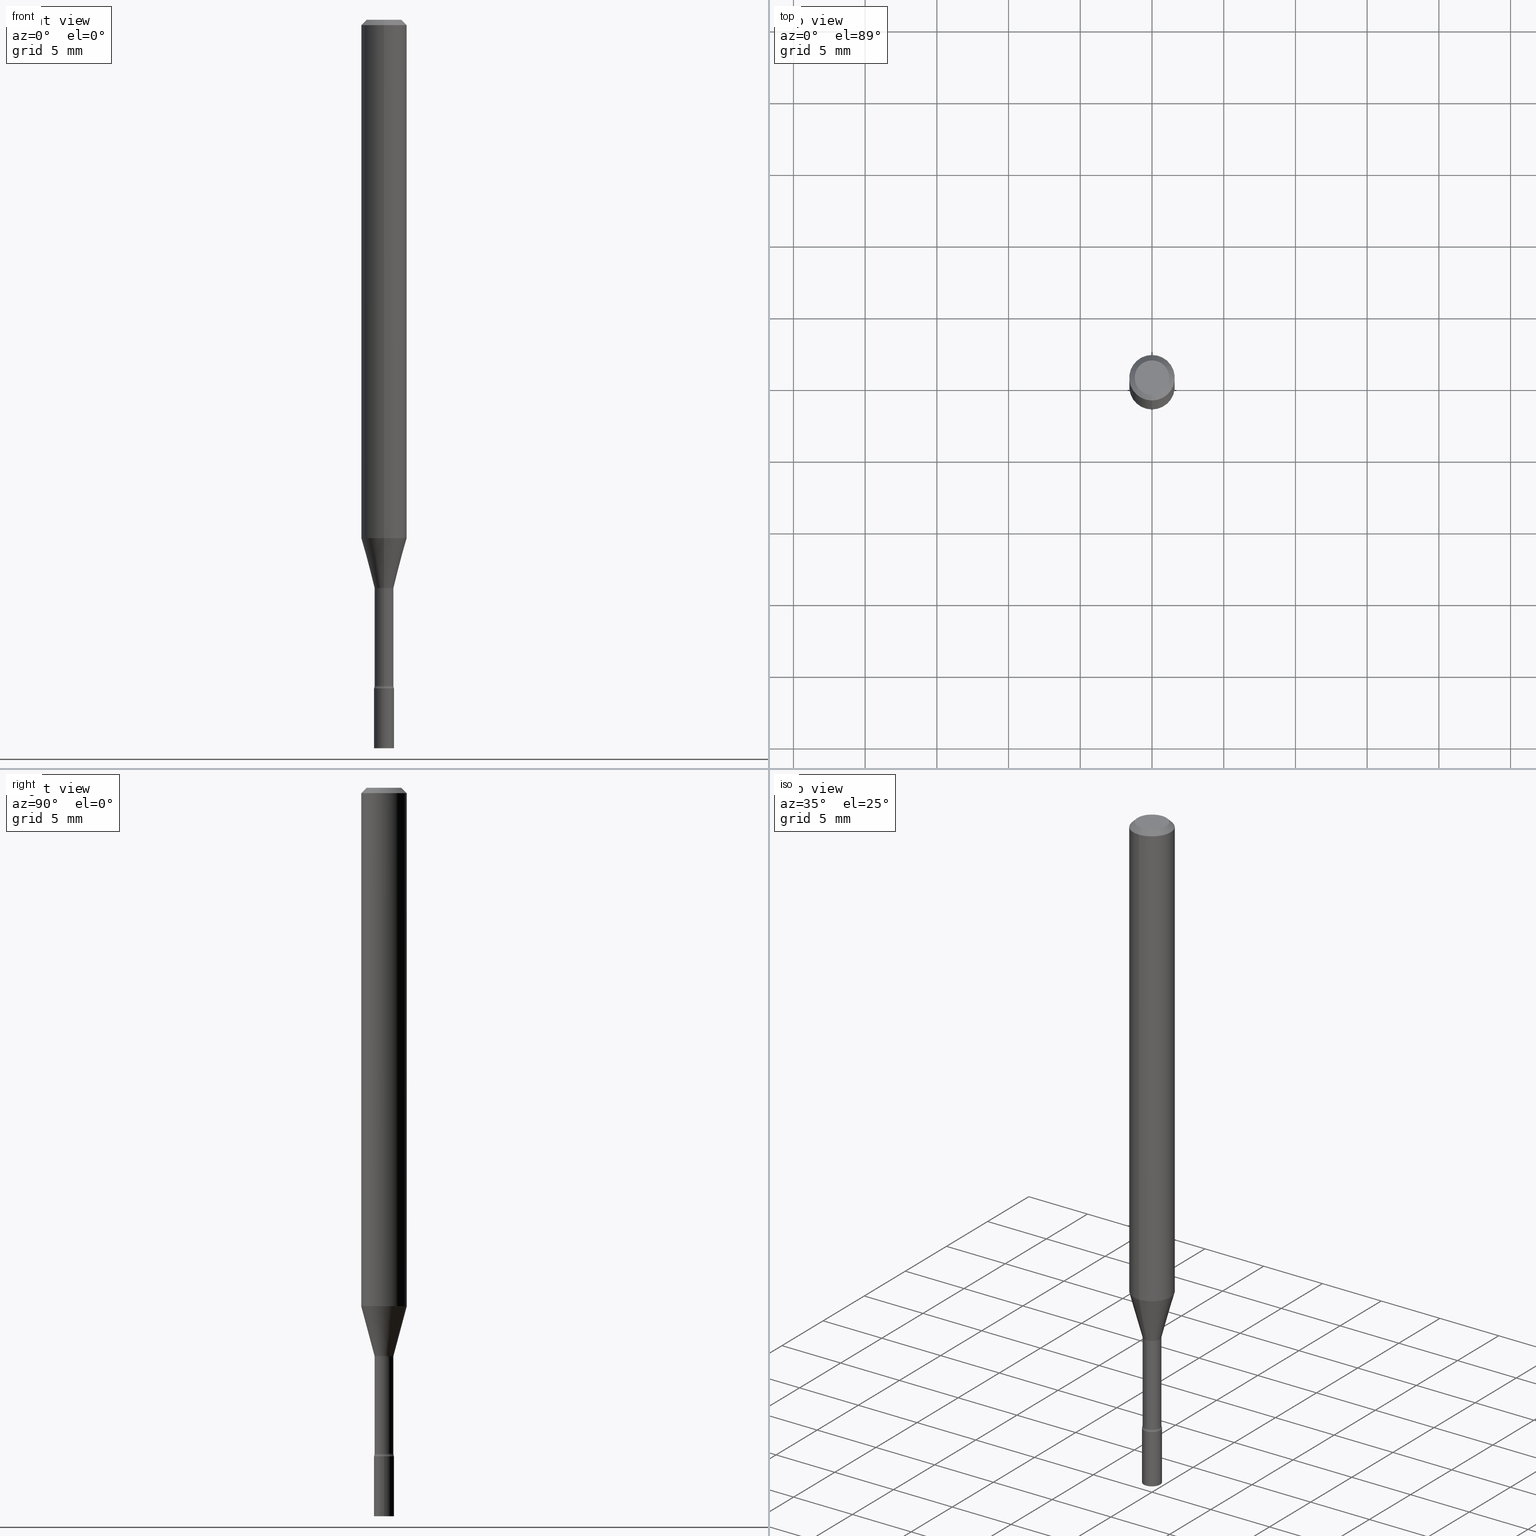
[diagram: canonical four-view strip — front | top / right | iso, engineering-drawing reading convention]
A machine part, canonical four-view strip (front | top / right | iso — engineering-drawing reading convention). The complete STEP part file that produces these views, byte-faithful:
ISO-10303-21;
HEADER;
FILE_DESCRIPTION (( 'STEP AP203' ),
    '1' );
FILE_NAME ('09861.STEP',
    '2024-03-09T02:26:53',
    ( '' ),
    ( '' ),
    'SwSTEP 2.0',
    'SolidWorks 2023',
    '' );
FILE_SCHEMA (( 'CONFIG_CONTROL_DESIGN' ));
ENDSEC;

DATA;
#1 = VERTEX_POINT ( 'NONE', #249 ) ;
#2 = ADVANCED_FACE ( 'NONE', ( #43 ), #41, .T. ) ;
#3 = ORIENTED_EDGE ( 'NONE', *, *, #342, .F. ) ;
#4 = AXIS2_PLACEMENT_3D ( 'NONE', #186, #29, #275 ) ;
#5 = AXIS2_PLACEMENT_3D ( 'NONE', #472, #191, #270 ) ;
#6 = ADVANCED_FACE ( 'NONE', ( #457 ), #416, .T. ) ;
#7 = CARTESIAN_POINT ( 'NONE',  ( 4.487377825415129474E-29, -6.406950505440450642E-15, -1.834999999999999964 ) ) ;
#8 = ORIENTED_EDGE ( 'NONE', *, *, #456, .F. ) ;
#9 = APPROVAL_DATE_TIME ( #372, #450 ) ;
#10 = DIRECTION ( 'NONE',  ( -6.982962677686263555E-15, -1.000000000000000000, 0.000000000000000000 ) ) ;
#11 = PERSON_AND_ORGANIZATION_ROLE ( 'design_supplier' ) ;
#12 = CARTESIAN_POINT ( 'NONE',  ( -1.840786654675984298E-16, -0.02636111260566941991, -1.558092501787273099 ) ) ;
#13 = APPROVAL_DATE_TIME ( #404, #459 ) ;
#14 = DIRECTION ( 'NONE',  ( -2.445437507038217742E-29, 3.491526161002970435E-15, 1.000000000000000000 ) ) ;
#15 = LOCAL_TIME ( 21, 26, 53.00000000000000000, #506 ) ;
#16 = CARTESIAN_POINT ( 'NONE',  ( 0.02750000000000000014, -6.598899730413544603E-15, -1.834999999999999964 ) ) ;
#17 = LINE ( 'NONE', #271, #463 ) ;
#18 = DIRECTION ( 'NONE',  ( 2.438088387897960049E-29, -3.491481338843145188E-15, -1.000000000000000000 ) ) ;
#19 = APPROVAL_STATUS ( 'not_yet_approved' ) ;
#20 = EDGE_CURVE ( 'NONE', #48, #360, #493, .T. ) ;
#21 = LINE ( 'NONE', #266, #215 ) ;
#22 = ORIENTED_EDGE ( 'NONE', *, *, #350, .T. ) ;
#23 = CARTESIAN_POINT ( 'NONE',  ( 2.902567075580390688E-16, 0.04084999999999454345, -1.561974787463811243 ) ) ;
#24 = CARTESIAN_POINT ( 'NONE',  ( -1.805095852181458995E-16, -0.02585000000000647197, -1.828160592130893436 ) ) ;
#25 = AXIS2_PLACEMENT_3D ( 'NONE', #147, #353, #69 ) ;
#26 = CARTESIAN_POINT ( 'NONE',  ( 3.480396395086626474E-29, -4.969211042658417815E-15, -1.423220337902600718 ) ) ;
#27 = CARTESIAN_POINT ( 'NONE',  ( 0.000000000000000000, 0.000000000000000000, 0.000000000000000000 ) ) ;
#28 = DIRECTION ( 'NONE',  ( -6.982962677686265922E-15, -1.000000000000000000, 4.370956789862821150E-15 ) ) ;
#29 = DIRECTION ( 'NONE',  ( 2.445437507038217182E-29, -3.491526161002970435E-15, -1.000000000000000000 ) ) ;
#30 = CARTESIAN_POINT ( 'NONE',  ( 4.440892098500625669E-16, 0.06250000000000000000, -2.182203850626856522E-16 ) ) ;
#31 = VERTEX_POINT ( 'NONE', #24 ) ;
#32 = DIRECTION ( 'NONE',  ( -6.982962677686265922E-15, -1.000000000000000000, 0.000000000000000000 ) ) ;
#33 = CARTESIAN_POINT ( 'NONE',  ( 4.487435259349726059E-29, -6.406868256777172111E-15, -1.834999999999999964 ) ) ;
#34 = CIRCLE ( 'NONE', #481, 0.01500000000000002720 ) ;
#35 = DIRECTION ( 'NONE',  ( -2.445468806185136597E-29, 3.491481338843145583E-15, 1.000000000000000000 ) ) ;
#36 = ADVANCED_FACE ( 'NONE', ( #499 ), #422, .T. ) ;
#37 = ORIENTED_EDGE ( 'NONE', *, *, #503, .F. ) ;
#38 = CIRCLE ( 'NONE', #200, 0.02584999999999999798 ) ;
#39 = ORIENTED_EDGE ( 'NONE', *, *, #433, .F. ) ;
#40 = ORIENTED_EDGE ( 'NONE', *, *, #370, .T. ) ;
#41 = CYLINDRICAL_SURFACE ( 'NONE', #263, 0.02585000000000004655 ) ;
#42 = PERSON_AND_ORGANIZATION_ROLE ( 'design_owner' ) ;
#43 = FACE_OUTER_BOUND ( 'NONE', #411, .T. ) ;
#44 = COORDINATED_UNIVERSAL_TIME_OFFSET ( 5, 0, .BEHIND. ) ;
#45 = LINE ( 'NONE', #445, #441 ) ;
#46 = CIRCLE ( 'NONE', #421, 0.06250000000000000000 ) ;
#47 = ORGANIZATION ( 'UNSPECIFIED', 'UNSPECIFIED', '' ) ;
#48 = VERTEX_POINT ( 'NONE', #72 ) ;
#49 = PERSON_AND_ORGANIZATION_ROLE ( 'creator' ) ;
#50 = VERTEX_POINT ( 'NONE', #181 ) ;
#51 = DIRECTION ( 'NONE',  ( 1.000000000000000000, -6.982962677686279332E-15, 0.000000000000000000 ) ) ;
#52 = VECTOR ( 'NONE', #173, 39.37007874015748854 ) ;
#53 = DIRECTION ( 'NONE',  ( -2.445437507038217742E-29, 3.491526161002970435E-15, 1.000000000000000000 ) ) ;
#54 =( NAMED_UNIT ( * ) PLANE_ANGLE_UNIT ( ) SI_UNIT ( $, .RADIAN. ) );
#55 = PERSON_AND_ORGANIZATION ( #203, #47 ) ;
#56 = APPLICATION_CONTEXT ( 'configuration controlled 3d designs of mechanical parts and assemblies' ) ;
#57 = CARTESIAN_POINT ( 'NONE',  ( 3.668156260557333655E-31, -5.237289241504466426E-17, -0.01500000000000003067 ) ) ;
#58 = DATE_AND_TIME ( #454, #113 ) ;
#59 = DIRECTION ( 'NONE',  ( -6.982962677686265922E-15, -1.000000000000000000, 3.491526161002970435E-15 ) ) ;
#60 = CARTESIAN_POINT ( 'NONE',  ( 7.070195579311093589E-46, -1.009462427787423311E-31, -2.891178187527733767E-17 ) ) ;
#61 = APPROVAL ( #444, 'UNSPECIFIED' ) ;
#62 = CIRCLE ( 'NONE', #356, 0.04749999999999999362 ) ;
#63 = ORIENTED_EDGE ( 'NONE', *, *, #126, .F. ) ;
#64 = DIRECTION ( 'NONE',  ( 6.982962677686265922E-15, 1.000000000000000000, -3.483106191921935554E-15 ) ) ;
#65 = CARTESIAN_POINT ( 'NONE',  ( 0.000000000000000000, 0.000000000000000000, 0.000000000000000000 ) ) ;
#66 = FACE_OUTER_BOUND ( 'NONE', #262, .T. ) ;
#67 = ORIENTED_EDGE ( 'NONE', *, *, #114, .T. ) ;
#68 = DIRECTION ( 'NONE',  ( -2.445437507038217742E-29, 3.491526161002970435E-15, 1.000000000000000000 ) ) ;
#69 = DIRECTION ( 'NONE',  ( -6.982962677686265922E-15, -1.000000000000000000, 3.491526161002970435E-15 ) ) ;
#70 = FACE_OUTER_BOUND ( 'NONE', #247, .T. ) ;
#71 = VERTEX_POINT ( 'NONE', #179 ) ;
#72 = CARTESIAN_POINT ( 'NONE',  ( -0.02750000000000000014, -6.499516214897703913E-15, -1.834999999999999964 ) ) ;
#73 = LINE ( 'NONE', #30, #265 ) ;
#74 = AXIS2_PLACEMENT_3D ( 'NONE', #409, #449, #99 ) ;
#75 = APPROVAL_PERSON_ORGANIZATION ( #85, #450, #399 ) ;
#76 = EDGE_CURVE ( 'NONE', #1, #127, #62, .T. ) ;
#77 = ORIENTED_EDGE ( 'NONE', *, *, #373, .T. ) ;
#78 = ADVANCED_FACE ( 'NONE', ( #347 ), #228, .F. ) ;
#79 = ORIENTED_EDGE ( 'NONE', *, *, #342, .T. ) ;
#80 = AXIS2_PLACEMENT_3D ( 'NONE', #255, #90, #145 ) ;
#81 = ORIENTED_EDGE ( 'NONE', *, *, #241, .F. ) ;
#82 = APPROVAL_PERSON_ORGANIZATION ( #92, #459, #252 ) ;
#83 = EDGE_CURVE ( 'NONE', #392, #240, #226, .T. ) ;
#84 = EDGE_LOOP ( 'NONE', ( #87, #37, #516, #287 ) ) ;
#85 = PERSON_AND_ORGANIZATION ( #203, #47 ) ;
#86 = DIRECTION ( 'NONE',  ( -2.445437507038217742E-29, 3.491526161002970435E-15, 1.000000000000000000 ) ) ;
#87 = ORIENTED_EDGE ( 'NONE', *, *, #161, .F. ) ;
#88 = AXIS2_PLACEMENT_3D ( 'NONE', #130, #484, #290 ) ;
#89 = LOCAL_TIME ( 21, 26, 53.00000000000000000, #44 ) ;
#90 = DIRECTION ( 'NONE',  ( 1.000000000000000000, -7.105427357601001070E-15, 4.926316057455228102E-29 ) ) ;
#91 =( LENGTH_UNIT ( ) NAMED_UNIT ( * ) SI_UNIT ( $, .METRE. ) );
#92 = PERSON_AND_ORGANIZATION ( #203, #47 ) ;
#93 = ORIENTED_EDGE ( 'NONE', *, *, #20, .T. ) ;
#94 = CARTESIAN_POINT ( 'NONE',  ( 3.819711730312051793E-29, -5.453675833256950952E-15, -1.561974787463811021 ) ) ;
#95 = CARTESIAN_POINT ( 'NONE',  ( 3.819760618790408419E-29, -5.453605822173385006E-15, -1.561974787463811021 ) ) ;
#96 = ORIENTED_EDGE ( 'NONE', *, *, #483, .T. ) ;
#97 = COORDINATED_UNIVERSAL_TIME_OFFSET ( 5, 0, .BEHIND. ) ;
#98 = TOROIDAL_SURFACE ( 'NONE', #250, 0.04084999999999999742, 0.01500000000000002373 ) ;
#99 = DIRECTION ( 'NONE',  ( -6.982962677686265922E-15, -1.000000000000000000, 3.491526161002970435E-15 ) ) ;
#100 = CIRCLE ( 'NONE', #369, 0.06250000000000000000 ) ;
#101 = CARTESIAN_POINT ( 'NONE',  ( 4.470652480886083161E-29, -6.383070533939695711E-15, -1.828160592130893436 ) ) ;
#102 = CARTESIAN_POINT ( 'NONE',  ( 1.920314736364212538E-16, 0.02749999999999301961, -2.000000000000000000 ) ) ;
#103 = FACE_OUTER_BOUND ( 'NONE', #120, .T. ) ;
#104 = CARTESIAN_POINT ( 'NONE',  ( 3.156980902676104924E-16, 0.02636111260565854320, -1.558092501787273099 ) ) ;
#105 = CIRCLE ( 'NONE', #299, 0.01500000000000002720 ) ;
#106 = VECTOR ( 'NONE', #223, 39.37007874015748143 ) ;
#107 = DIRECTION ( 'NONE',  ( -2.445437507038217462E-29, 3.491526161002970435E-15, 1.000000000000000000 ) ) ;
#108 = DIRECTION ( 'NONE',  ( -2.445468806185136597E-29, 3.491481338843145583E-15, 1.000000000000000000 ) ) ;
#109 = DIRECTION ( 'NONE',  ( -1.000000000000000000, 6.982962677686265922E-15, -4.876176775795935793E-29 ) ) ;
#110 = ADVANCED_FACE ( 'NONE', ( #229 ), #384, .F. ) ;
#111 = ORIENTED_EDGE ( 'NONE', *, *, #114, .F. ) ;
#112 = AXIS2_PLACEMENT_3D ( 'NONE', #423, #385, #458 ) ;
#113 = LOCAL_TIME ( 21, 26, 53.00000000000000000, #182 ) ;
#114 = EDGE_CURVE ( 'NONE', #242, #374, #512, .T. ) ;
#115 = DESIGN_CONTEXT ( 'detailed design', #196, 'design' ) ;
#116 = ORIENTED_EDGE ( 'NONE', *, *, #254, .F. ) ;
#117 = CC_DESIGN_PERSON_AND_ORGANIZATION_ASSIGNMENT ( #55, #49, ( #511 ) ) ;
#118 = VERTEX_POINT ( 'NONE', #152 ) ;
#119 = CONICAL_SURFACE ( 'NONE', #157, 0.06250000000000000000, 0.7853981633974483900 ) ;
#120 = EDGE_LOOP ( 'NONE', ( #22, #93 ) ) ;
#121 = PERSON_AND_ORGANIZATION ( #203, #47 ) ;
#122 = DIRECTION ( 'NONE',  ( -6.982962677686265922E-15, -1.000000000000000000, 0.000000000000000000 ) ) ;
#123 = ORIENTED_EDGE ( 'NONE', *, *, #155, .T. ) ;
#124 = DIRECTION ( 'NONE',  ( 1.000000000000000000, 0.000000000000000000, 0.000000000000000000 ) ) ;
#125 = CARTESIAN_POINT ( 'NONE',  ( 3.840629472727447874E-16, 0.04749999999999999362, -1.947592745229184119E-16 ) ) ;
#126 = EDGE_CURVE ( 'NONE', #50, #392, #518, .T. ) ;
#127 = VERTEX_POINT ( 'NONE', #125 ) ;
#128 = EDGE_CURVE ( 'NONE', #357, #360, #293, .T. ) ;
#129 = LINE ( 'NONE', #253, #328 ) ;
#130 = CARTESIAN_POINT ( 'NONE',  ( 4.890937612370273194E-29, -6.982962677686291165E-15, -2.000000000000000000 ) ) ;
#131 = DIRECTION ( 'NONE',  ( -6.982962677686266711E-15, -1.000000000000000000, 0.000000000000000000 ) ) ;
#132 = CC_DESIGN_APPROVAL ( #61, ( #511 ) ) ;
#133 = DIRECTION ( 'NONE',  ( -6.982962677686265922E-15, -1.000000000000000000, 0.000000000000000000 ) ) ;
#134 = CARTESIAN_POINT ( 'NONE',  ( 4.487435259349726059E-29, -6.406868256777172111E-15, -1.834999999999999964 ) ) ;
#135 = EDGE_CURVE ( 'NONE', #168, #366, #38, .T. ) ;
#136 = DIRECTION ( 'NONE',  ( -6.982962677686266711E-15, -1.000000000000000000, 0.000000000000000000 ) ) ;
#137 = CARTESIAN_POINT ( 'NONE',  ( 0.000000000000000000, 0.000000000000000000, 0.000000000000000000 ) ) ;
#138 = DIRECTION ( 'NONE',  ( -2.445437507038217742E-29, 3.491526161002970435E-15, 1.000000000000000000 ) ) ;
#139 = CIRCLE ( 'NONE', #400, 0.06250000000000000000 ) ;
#140 = APPROVAL_PERSON_ORGANIZATION ( #291, #61, #412 ) ;
#141 = DIRECTION ( 'NONE',  ( -2.445437507038217742E-29, 3.491526161002970435E-15, 1.000000000000000000 ) ) ;
#142 = DIMENSIONAL_EXPONENTS ( 1.000000000000000000, 0.000000000000000000, 0.000000000000000000, 0.000000000000000000, 0.000000000000000000, 0.000000000000000000, 0.000000000000000000 ) ;
#143 = CARTESIAN_POINT ( 'NONE',  ( 4.470709700753047924E-29, -6.382988591833449480E-15, -1.828160592130893436 ) ) ;
#144 = ADVANCED_FACE ( 'NONE', ( #294 ), #208, .F. ) ;
#145 = DIRECTION ( 'NONE',  ( 7.105427357601001859E-15, 1.000000000000000000, 0.000000000000000000 ) ) ;
#146 = DIRECTION ( 'NONE',  ( -2.445437507038217742E-29, 3.491526161002970435E-15, 1.000000000000000000 ) ) ;
#147 = CARTESIAN_POINT ( 'NONE',  ( 4.470709700753047924E-29, -6.382988591833449480E-15, -1.828160592130893436 ) ) ;
#148 = ORIENTED_EDGE ( 'NONE', *, *, #128, .T. ) ;
#149 = CIRCLE ( 'NONE', #436, 0.02584999999999999798 ) ;
#150 = CIRCLE ( 'NONE', #5, 0.06250000000000000000 ) ;
#151 = CARTESIAN_POINT ( 'NONE',  ( 3.810217843305608838E-29, -5.440120731252832209E-15, -1.558092501787273099 ) ) ;
#152 = CARTESIAN_POINT ( 'NONE',  ( -1.920314736363273300E-16, -0.02750000000000639086, -1.834999999999999964 ) ) ;
#153 = CARTESIAN_POINT ( 'NONE',  ( 3.668156260557333655E-31, -5.237289241504466426E-17, -0.01500000000000003067 ) ) ;
#154 = ORIENTED_EDGE ( 'NONE', *, *, #311, .F. ) ;
#155 = EDGE_CURVE ( 'NONE', #393, #357, #361, .T. ) ;
#156 = CARTESIAN_POINT ( 'NONE',  ( -4.364351673553912750E-16, -0.06250000000000005551, -0.01499999999999981209 ) ) ;
#157 = AXIS2_PLACEMENT_3D ( 'NONE', #57, #284, #344 ) ;
#158 = AXIS2_PLACEMENT_3D ( 'NONE', #27, #239, #230 ) ;
#159 = ORIENTED_EDGE ( 'NONE', *, *, #320, .T. ) ;
#160 = APPLICATION_PROTOCOL_DEFINITION ( 'international standard', 'config_control_design', 1994, #56 ) ;
#161 = EDGE_CURVE ( 'NONE', #259, #324, #346, .T. ) ;
#162 = EDGE_LOOP ( 'NONE', ( #428, #177, #286, #476 ) ) ;
#163 = ORIENTED_EDGE ( 'NONE', *, *, #224, .F. ) ;
#164 = CLOSED_SHELL ( 'NONE', ( #379, #414, #447, #6 ) ) ;
#165 = AXIS2_PLACEMENT_3D ( 'NONE', #496, #172, #131 ) ;
#166 = CARTESIAN_POINT ( 'NONE',  ( 0.02750000000000000014, -1.920314736363723444E-16, 1.340948613343882413E-30 ) ) ;
#167 = CONICAL_SURFACE ( 'NONE', #424, 0.02636111260566398329, 0.2617993877991496854 ) ;
#168 = VERTEX_POINT ( 'NONE', #303 ) ;
#169 = ADVANCED_FACE ( 'NONE', ( #225 ), #308, .T. ) ;
#170 = DIRECTION ( 'NONE',  ( -2.445437507038217742E-29, 3.491526161002970435E-15, 1.000000000000000000 ) ) ;
#171 = ORIENTED_EDGE ( 'NONE', *, *, #311, .T. ) ;
#172 = DIRECTION ( 'NONE',  ( -2.445437507038217742E-29, 3.491526161002970435E-15, 1.000000000000000000 ) ) ;
#173 = DIRECTION ( 'NONE',  ( -1.807323732225326195E-15, -0.2588190451025176309, 0.9659258262890690894 ) ) ;
#174 = CARTESIAN_POINT ( 'NONE',  ( 3.810217843305608838E-29, -5.440120731252832209E-15, -1.558092501787273099 ) ) ;
#175 = AXIS2_PLACEMENT_3D ( 'NONE', #402, #86, #212 ) ;
#176 = AXIS2_PLACEMENT_3D ( 'NONE', #7, #170, #213 ) ;
#177 = ORIENTED_EDGE ( 'NONE', *, *, #319, .T. ) ;
#178 = CARTESIAN_POINT ( 'NONE',  ( 3.668156260557333655E-31, -5.237289241504466426E-17, -0.01500000000000003067 ) ) ;
#179 = CARTESIAN_POINT ( 'NONE',  ( 4.440892098500976219E-16, 0.06249999999999995143, -0.01500000000000024751 ) ) ;
#180 = FACE_OUTER_BOUND ( 'NONE', #514, .T. ) ;
#181 = CARTESIAN_POINT ( 'NONE',  ( -1.840786654675984298E-16, -0.02636111260566941991, -1.558092501787273099 ) ) ;
#182 = COORDINATED_UNIVERSAL_TIME_OFFSET ( 5, 0, .BEHIND. ) ;
#183 = AXIS2_PLACEMENT_3D ( 'NONE', #464, #108, #272 ) ;
#184 = ORIENTED_EDGE ( 'NONE', *, *, #285, .T. ) ;
#185 = EDGE_CURVE ( 'NONE', #259, #366, #17, .T. ) ;
#186 = CARTESIAN_POINT ( 'NONE',  ( 3.316907271900976096E-16, 0.04749999999999999362, -1.803033835852797523E-16 ) ) ;
#187 = CARTESIAN_POINT ( 'NONE',  ( 3.810217843305608838E-29, -5.440120731252832209E-15, -1.558092501787273099 ) ) ;
#188 = DIRECTION ( 'NONE',  ( 1.000000000000000000, -7.105427357601001070E-15, 4.926316057455228102E-29 ) ) ;
#189 = DIRECTION ( 'NONE',  ( 1.000000000000000000, -6.982962677686266711E-15, 4.876176775795935793E-29 ) ) ;
#190 = EDGE_LOOP ( 'NONE', ( #438, #63, #159, #485 ) ) ;
#191 = DIRECTION ( 'NONE',  ( -2.445437507038217742E-29, 3.491526161002970435E-15, 1.000000000000000000 ) ) ;
#192 = ADVANCED_FACE ( 'NONE', ( #313 ), #505, .T. ) ;
#193 = AXIS2_PLACEMENT_3D ( 'NONE', #65, #269, #306 ) ;
#194 = AXIS2_PLACEMENT_3D ( 'NONE', #33, #317, #307 ) ;
#195 = EDGE_LOOP ( 'NONE', ( #510, #321 ) ) ;
#196 = APPLICATION_CONTEXT ( 'configuration controlled 3d designs of mechanical parts and assemblies' ) ;
#197 = CC_DESIGN_DATE_AND_TIME_ASSIGNMENT ( #335, #381, ( #201 ) ) ;
#198 = ORIENTED_EDGE ( 'NONE', *, *, #161, .T. ) ;
#199 = CC_DESIGN_PERSON_AND_ORGANIZATION_ASSIGNMENT ( #295, #11, ( #511 ) ) ;
#200 = AXIS2_PLACEMENT_3D ( 'NONE', #94, #260, #136 ) ;
#201 = SECURITY_CLASSIFICATION ( '', '', #222 ) ;
#202 = ORIENTED_EDGE ( 'NONE', *, *, #427, .F. ) ;
#203 = PERSON ( 'UNSPECIFIED', 'UNSPECIFIED', 'UNSPECIFIED', ('UNSPECIFIED'), ('UNSPECIFIED'), ('UNSPECIFIED') ) ;
#204 = PRODUCT ( '09861', '09861', '', ( #479 ) ) ;
#205 = EDGE_LOOP ( 'NONE', ( #364, #292, #473, #440 ) ) ;
#206 = DIRECTION ( 'NONE',  ( -6.982962677686266711E-15, -1.000000000000000000, 3.491526161002970830E-15 ) ) ;
#207 = ORIENTED_EDGE ( 'NONE', *, *, #76, .T. ) ;
#208 = TOROIDAL_SURFACE ( 'NONE', #175, 0.04084999999999999742, 0.01500000000000002373 ) ;
#209 = CARTESIAN_POINT ( 'NONE',  ( 4.470652480886083161E-29, -6.383070533939695711E-15, -1.828160592130893436 ) ) ;
#210 = CARTESIAN_POINT ( 'NONE',  ( 0.000000000000000000, 0.000000000000000000, 0.000000000000000000 ) ) ;
#211 = CALENDAR_DATE ( 2024, 8, 3 ) ;
#212 = DIRECTION ( 'NONE',  ( -6.982962677686265922E-15, -1.000000000000000000, 3.491526161002970435E-15 ) ) ;
#213 = DIRECTION ( 'NONE',  ( -6.982962677686266711E-15, -1.000000000000000000, 0.000000000000000000 ) ) ;
#214 = APPROVAL_DATE_TIME ( #58, #61 ) ;
#215 = VECTOR ( 'NONE', #413, 39.37007874015748143 ) ;
#216 = SHAPE_DEFINITION_REPRESENTATION ( #338, #406 ) ;
#217 = AXIS2_PLACEMENT_3D ( 'NONE', #281, #486, #124 ) ;
#218 = PRODUCT_RELATED_PRODUCT_CATEGORY ( 'detail', '', ( #204 ) ) ;
#219 = CARTESIAN_POINT ( 'NONE',  ( -4.364351673553569595E-16, -0.06250000000000498213, -1.423220337902600496 ) ) ;
#220 = PERSON_AND_ORGANIZATION ( #203, #47 ) ;
#221 = PLANE ( 'NONE',  #74 ) ;
#222 = SECURITY_CLASSIFICATION_LEVEL ( 'unclassified' ) ;
#223 = DIRECTION ( 'NONE',  ( -2.445437507038217462E-29, 3.491526161002970435E-15, 1.000000000000000000 ) ) ;
#224 = EDGE_CURVE ( 'NONE', #240, #242, #46, .T. ) ;
#225 = FACE_OUTER_BOUND ( 'NONE', #318, .T. ) ;
#226 = LINE ( 'NONE', #343, #274 ) ;
#227 = CYLINDRICAL_SURFACE ( 'NONE', #158, 0.02585000000000004655 ) ;
#228 = TOROIDAL_SURFACE ( 'NONE', #25, 0.04085000000000005987, 0.01499999999999996822 ) ;
#229 = FACE_OUTER_BOUND ( 'NONE', #331, .T. ) ;
#230 = DIRECTION ( 'NONE',  ( -6.982962677686265922E-15, -1.000000000000000000, 3.491526161002970830E-15 ) ) ;
#231 = ORIENTED_EDGE ( 'NONE', *, *, #128, .F. ) ;
#232 = EDGE_CURVE ( 'NONE', #392, #366, #105, .T. ) ;
#233 = CARTESIAN_POINT ( 'NONE',  ( 4.440892098500972274E-16, 0.06249999999999501094, -1.423220337902601162 ) ) ;
#234 = CARTESIAN_POINT ( 'NONE',  ( -4.364351673553916201E-16, -0.06250000000000000000, 2.182203850626856522E-16 ) ) ;
#235 = DIRECTION ( 'NONE',  ( 1.000000000000000000, -6.982962677686266711E-15, 4.876176775795935793E-29 ) ) ;
#236 = CC_DESIGN_PERSON_AND_ORGANIZATION_ASSIGNMENT ( #220, #443, ( #201 ) ) ;
#237 = ORIENTED_EDGE ( 'NONE', *, *, #503, .T. ) ;
#238 = ADVANCED_FACE ( 'NONE', ( #180 ), #378, .T. ) ;
#239 = DIRECTION ( 'NONE',  ( -2.445437507038217742E-29, 3.491526161002970435E-15, 1.000000000000000000 ) ) ;
#240 = VERTEX_POINT ( 'NONE', #233 ) ;
#241 = EDGE_CURVE ( 'NONE', #259, #31, #394, .T. ) ;
#242 = VERTEX_POINT ( 'NONE', #219 ) ;
#243 = ORIENTED_EDGE ( 'NONE', *, *, #329, .T. ) ;
#244 = AXIS2_PLACEMENT_3D ( 'NONE', #101, #267, #32 ) ;
#245 = CC_DESIGN_APPROVAL ( #450, ( #251 ) ) ;
#246 = DIRECTION ( 'NONE',  ( -2.445437507038217742E-29, 3.491526161002970435E-15, 1.000000000000000000 ) ) ;
#247 = EDGE_LOOP ( 'NONE', ( #418, #96, #323, #163 ) ) ;
#248 = MANIFOLD_SOLID_BREP ( 'Body-Move/Copy2[2]', #387 ) ;
#249 = CARTESIAN_POINT ( 'NONE',  ( -3.773273898774340269E-16, -0.04749999999999999362, 1.369357107723637735E-16 ) ) ;
#250 = AXIS2_PLACEMENT_3D ( 'NONE', #95, #336, #491 ) ;
#251 = PRODUCT_DEFINITION ( 'UNKNOWN', '', #511, #115 ) ;
#252 = APPROVAL_ROLE ( '' ) ;
#253 = CARTESIAN_POINT ( 'NONE',  ( -0.02750000000000000014, 1.953992523340275521E-16, -1.352707149820099181E-30 ) ) ;
#254 = EDGE_CURVE ( 'NONE', #50, #242, #345, .T. ) ;
#255 = CARTESIAN_POINT ( 'NONE',  ( 2.902567075580459713E-16, 0.04084999999999366915, -1.828160592130893658 ) ) ;
#256 = CALENDAR_DATE ( 2024, 8, 3 ) ;
#257 = DIRECTION ( 'NONE',  ( -2.445468806185136597E-29, 3.491481338843145583E-15, 1.000000000000000000 ) ) ;
#258 = EDGE_CURVE ( 'NONE', #366, #168, #149, .T. ) ;
#259 = VERTEX_POINT ( 'NONE', #297 ) ;
#260 = DIRECTION ( 'NONE',  ( -2.445437507038217742E-29, 3.491526161002970435E-15, 1.000000000000000000 ) ) ;
#261 = DIRECTION ( 'NONE',  ( -6.982962677686265922E-15, -1.000000000000000000, 0.000000000000000000 ) ) ;
#262 = EDGE_LOOP ( 'NONE', ( #478, #123, #148, #302 ) ) ;
#263 = AXIS2_PLACEMENT_3D ( 'NONE', #210, #246, #397 ) ;
#264 = DATE_TIME_ROLE ( 'creation_date' ) ;
#265 = VECTOR ( 'NONE', #419, 39.37007874015748143 ) ;
#266 = CARTESIAN_POINT ( 'NONE',  ( 4.364351673553919652E-16, 0.06249999999999995143, -0.01500000000000024751 ) ) ;
#267 = DIRECTION ( 'NONE',  ( -2.445437507038217742E-29, 3.491526161002970435E-15, 1.000000000000000000 ) ) ;
#268 = CARTESIAN_POINT ( 'NONE',  ( 0.000000000000000000, 0.000000000000000000, 0.000000000000000000 ) ) ;
#269 = DIRECTION ( 'NONE',  ( -2.445437507038217742E-29, 3.491526161002970435E-15, 1.000000000000000000 ) ) ;
#270 = DIRECTION ( 'NONE',  ( -6.982962677686265922E-15, -1.000000000000000000, 4.370956789862821150E-15 ) ) ;
#271 = CARTESIAN_POINT ( 'NONE',  ( 1.836752971939862042E-16, 0.02585000000000004655, -9.025595126192696119E-17 ) ) ;
#272 = DIRECTION ( 'NONE',  ( 1.000000000000000000, -6.982962677686279332E-15, 0.000000000000000000 ) ) ;
#273 = CYLINDRICAL_SURFACE ( 'NONE', #330, 0.02750000000000000014 ) ;
#274 = VECTOR ( 'NONE', #314, 39.37007874015748143 ) ;
#275 = DIRECTION ( 'NONE',  ( 6.982962677686265922E-15, 1.000000000000000000, -3.491526161002970435E-15 ) ) ;
#276 = CARTESIAN_POINT ( 'NONE',  ( -0.02750000000000000014, -6.499516214897703913E-15, -2.000000000000000000 ) ) ;
#277 = CIRCLE ( 'NONE', #112, 0.01499999999999996822 ) ;
#278 = AXIS2_PLACEMENT_3D ( 'NONE', #304, #340, #122 ) ;
#279 = ADVANCED_FACE ( 'NONE', ( #446 ), #221, .F. ) ;
#280 = ORIENTED_EDGE ( 'NONE', *, *, #135, .F. ) ;
#281 = CARTESIAN_POINT ( 'NONE',  ( 0.000000000000000000, 0.000000000000000000, 0.000000000000000000 ) ) ;
#282 = ORIENTED_EDGE ( 'NONE', *, *, #433, .T. ) ;
#283 = ORIENTED_EDGE ( 'NONE', *, *, #224, .T. ) ;
#284 = DIRECTION ( 'NONE',  ( 2.445437507038217742E-29, -3.491526161002970435E-15, -1.000000000000000000 ) ) ;
#285 = EDGE_CURVE ( 'NONE', #127, #71, #21, .T. ) ;
#286 = ORIENTED_EDGE ( 'NONE', *, *, #327, .T. ) ;
#287 = ORIENTED_EDGE ( 'NONE', *, *, #517, .T. ) ;
#288 = DIRECTION ( 'NONE',  ( -1.000000000000000000, 6.982962677686265922E-15, -4.883557194083112901E-29 ) ) ;
#289 = VECTOR ( 'NONE', #386, 39.37007874015748143 ) ;
#290 = DIRECTION ( 'NONE',  ( 1.000000000000000000, -6.982962677686279332E-15, 0.000000000000000000 ) ) ;
#291 = PERSON_AND_ORGANIZATION ( #203, #47 ) ;
#292 = ORIENTED_EDGE ( 'NONE', *, *, #232, .T. ) ;
#293 = LINE ( 'NONE', #166, #474 ) ;
#294 = FACE_OUTER_BOUND ( 'NONE', #205, .T. ) ;
#295 = PERSON_AND_ORGANIZATION ( #203, #47 ) ;
#296 = DIRECTION ( 'NONE',  ( -6.982962677686265922E-15, -1.000000000000000000, 3.483106191921935554E-15 ) ) ;
#297 = CARTESIAN_POINT ( 'NONE',  ( 1.895372747640517446E-16, 0.02584999999999370787, -1.828160592130893436 ) ) ;
#298 = ADVANCED_FACE ( 'NONE', ( #301 ), #119, .T. ) ;
#299 = AXIS2_PLACEMENT_3D ( 'NONE', #23, #188, #352 ) ;
#300 = AXIS2_PLACEMENT_3D ( 'NONE', #507, #354, #235 ) ;
#301 = FACE_OUTER_BOUND ( 'NONE', #162, .T. ) ;
#302 = ORIENTED_EDGE ( 'NONE', *, *, #20, .F. ) ;
#303 = CARTESIAN_POINT ( 'NONE',  ( -1.805095852181517913E-16, -0.02585000000000545542, -1.561974787463811021 ) ) ;
#304 = CARTESIAN_POINT ( 'NONE',  ( 3.810217843305608838E-29, -5.440120731252832209E-15, -1.558092501787273099 ) ) ;
#305 = CARTESIAN_POINT ( 'NONE',  ( 3.668156260557333655E-31, -5.237289241504466426E-17, -0.01500000000000003067 ) ) ;
#306 = DIRECTION ( 'NONE',  ( -6.982962677686265922E-15, -1.000000000000000000, 3.491526161002970435E-15 ) ) ;
#307 = DIRECTION ( 'NONE',  ( 1.000000000000000000, -6.982962677686265922E-15, 4.876176775795935793E-29 ) ) ;
#308 = CONICAL_SURFACE ( 'NONE', #339, 0.06250000000000000000, 0.7853981633974483900 ) ;
#309 = ORIENTED_EDGE ( 'NONE', *, *, #126, .T. ) ;
#310 = AXIS2_PLACEMENT_3D ( 'NONE', #102, #18, #109 ) ;
#311 = EDGE_CURVE ( 'NONE', #127, #1, #368, .T. ) ;
#312 = ORIENTED_EDGE ( 'NONE', *, *, #373, .F. ) ;
#313 = FACE_OUTER_BOUND ( 'NONE', #363, .T. ) ;
#314 = DIRECTION ( 'NONE',  ( 1.839019923739596371E-15, 0.2588190451025244032, 0.9659258262890673130 ) ) ;
#315 = FACE_OUTER_BOUND ( 'NONE', #470, .T. ) ;
#316 = UNCERTAINTY_MEASURE_WITH_UNIT (LENGTH_MEASURE( 1.000000000000000082E-05 ), #462, 'distance_accuracy_value', 'NONE');
#317 = DIRECTION ( 'NONE',  ( -2.438088387897960049E-29, 3.491481338843145188E-15, 1.000000000000000000 ) ) ;
#318 = EDGE_LOOP ( 'NONE', ( #425, #154, #184, #77 ) ) ;
#319 = EDGE_CURVE ( 'NONE', #1, #374, #45, .T. ) ;
#320 = EDGE_CURVE ( 'NONE', #50, #168, #34, .T. ) ;
#321 = ORIENTED_EDGE ( 'NONE', *, *, #155, .F. ) ;
#322 = AXIS2_PLACEMENT_3D ( 'NONE', #174, #495, #133 ) ;
#323 = ORIENTED_EDGE ( 'NONE', *, *, #254, .T. ) ;
#324 = VERTEX_POINT ( 'NONE', #489 ) ;
#325 = EDGE_LOOP ( 'NONE', ( #81, #198, #79, #391 ) ) ;
#326 = ORIENTED_EDGE ( 'NONE', *, *, #427, .T. ) ;
#327 = EDGE_CURVE ( 'NONE', #374, #71, #139, .T. ) ;
#328 = VECTOR ( 'NONE', #341, 39.37007874015748143 ) ;
#329 = EDGE_CURVE ( 'NONE', #393, #48, #129, .T. ) ;
#330 = AXIS2_PLACEMENT_3D ( 'NONE', #268, #509, #189 ) ;
#331 = EDGE_LOOP ( 'NONE', ( #171, #207 ) ) ;
#332 =( NAMED_UNIT ( * ) SI_UNIT ( $, .STERADIAN. ) SOLID_ANGLE_UNIT ( ) );
#333 = PERSON_AND_ORGANIZATION ( #203, #47 ) ;
#334 = ADVANCED_FACE ( 'NONE', ( #380 ), #98, .F. ) ;
#335 = DATE_AND_TIME ( #377, #15 ) ;
#336 = DIRECTION ( 'NONE',  ( -2.445437507038217742E-29, 3.491526161002970435E-15, 1.000000000000000000 ) ) ;
#337 = CARTESIAN_POINT ( 'NONE',  ( 3.819711730312051793E-29, -5.453675833256950952E-15, -1.561974787463811021 ) ) ;
#338 = PRODUCT_DEFINITION_SHAPE ( 'NONE', 'NONE',  #251 ) ;
#339 = AXIS2_PLACEMENT_3D ( 'NONE', #305, #460, #64 ) ;
#340 = DIRECTION ( 'NONE',  ( -2.445437507038217742E-29, 3.491526161002970435E-15, 1.000000000000000000 ) ) ;
#341 = DIRECTION ( 'NONE',  ( -2.445468806185136877E-29, 3.491481338843145188E-15, 1.000000000000000000 ) ) ;
#342 = EDGE_CURVE ( 'NONE', #324, #118, #389, .T. ) ;
#343 = CARTESIAN_POINT ( 'NONE',  ( 1.873069706851235602E-16, 0.02636111260565854320, -1.558092501787273099 ) ) ;
#344 = DIRECTION ( 'NONE',  ( 6.982962677686265922E-15, 1.000000000000000000, -3.483106191921935554E-15 ) ) ;
#345 = LINE ( 'NONE', #12, #52 ) ;
#346 = CIRCLE ( 'NONE', #80, 0.01499999999999996822 ) ;
#347 = FACE_OUTER_BOUND ( 'NONE', #325, .T. ) ;
#348 = CARTESIAN_POINT ( 'NONE',  ( 1.836752971940308241E-16, 0.02584999999999454748, -1.561974787463811021 ) ) ;
#349 = LOCAL_TIME ( 21, 26, 53.00000000000000000, #97 ) ;
#350 = EDGE_CURVE ( 'NONE', #360, #48, #429, .T. ) ;
#351 = PLANE ( 'NONE',  #194 ) ;
#352 = DIRECTION ( 'NONE',  ( 7.105427357600997914E-15, 1.000000000000000000, 0.000000000000000000 ) ) ;
#353 = DIRECTION ( 'NONE',  ( -2.445437507038217742E-29, 3.491526161002970435E-15, 1.000000000000000000 ) ) ;
#354 = DIRECTION ( 'NONE',  ( -2.445468806185136597E-29, 3.491481338843145583E-15, 1.000000000000000000 ) ) ;
#355 = FACE_OUTER_BOUND ( 'NONE', #520, .T. ) ;
#356 = AXIS2_PLACEMENT_3D ( 'NONE', #60, #138, #468 ) ;
#357 = VERTEX_POINT ( 'NONE', #408 ) ;
#358 = DIRECTION ( 'NONE',  ( -6.982962677686265922E-15, -1.000000000000000000, 3.483106191921935554E-15 ) ) ;
#359 = EDGE_LOOP ( 'NONE', ( #405, #3 ) ) ;
#360 = VERTEX_POINT ( 'NONE', #16 ) ;
#361 = CIRCLE ( 'NONE', #88, 0.02750000000000000014 ) ;
#362 = CIRCLE ( 'NONE', #176, 0.02750000000000000014 ) ;
#363 = EDGE_LOOP ( 'NONE', ( #39, #283, #67, #312 ) ) ;
#364 = ORIENTED_EDGE ( 'NONE', *, *, #483, .F. ) ;
#365 = EDGE_CURVE ( 'NONE', #31, #118, #277, .T. ) ;
#366 = VERTEX_POINT ( 'NONE', #348 ) ;
#367 = APPLICATION_PROTOCOL_DEFINITION ( 'international standard', 'config_control_design', 1994, #196 ) ;
#368 = CIRCLE ( 'NONE', #410, 0.04749999999999999362 ) ;
#369 = AXIS2_PLACEMENT_3D ( 'NONE', #153, #461, #358 ) ;
#370 = EDGE_CURVE ( 'NONE', #357, #393, #504, .T. ) ;
#371 = DIRECTION ( 'NONE',  ( -2.445437507038217742E-29, 3.491526161002970435E-15, 1.000000000000000000 ) ) ;
#372 = DATE_AND_TIME ( #211, #89 ) ;
#373 = EDGE_CURVE ( 'NONE', #71, #374, #100, .T. ) ;
#374 = VERTEX_POINT ( 'NONE', #156 ) ;
#375 = CALENDAR_DATE ( 2024, 8, 3 ) ;
#376 = DIRECTION ( 'NONE',  ( -4.851104656540964275E-15, -0.7071067811865500152, -0.7071067811865450192 ) ) ;
#377 = CALENDAR_DATE ( 2024, 8, 3 ) ;
#378 = CONICAL_SURFACE ( 'NONE', #451, 0.02636111260566398329, 0.2617993877991496854 ) ;
#379 = ADVANCED_FACE ( 'NONE', ( #315 ), #382, .T. ) ;
#380 = FACE_OUTER_BOUND ( 'NONE', #190, .T. ) ;
#381 = DATE_TIME_ROLE ( 'classification_date' ) ;
#382 = CYLINDRICAL_SURFACE ( 'NONE', #300, 0.02750000000000000014 ) ;
#383 = AXIS2_PLACEMENT_3D ( 'NONE', #137, #141, #420 ) ;
#384 = PLANE ( 'NONE',  #4 ) ;
#385 = DIRECTION ( 'NONE',  ( -1.000000000000000000, 6.982962677686265922E-15, -4.883557194083112901E-29 ) ) ;
#386 = DIRECTION ( 'NONE',  ( -2.445437507038217462E-29, 3.491526161002970435E-15, 1.000000000000000000 ) ) ;
#387 = CLOSED_SHELL ( 'NONE', ( #144, #471, #78, #298, #36, #238, #477, #192, #169, #110, #279, #396, #2, #334 ) ) ;
#388 = DIRECTION ( 'NONE',  ( -2.445437507038217742E-29, 3.491526161002970435E-15, 1.000000000000000000 ) ) ;
#389 = CIRCLE ( 'NONE', #165, 0.02750000000000000014 ) ;
#390 = CC_DESIGN_APPROVAL ( #459, ( #201 ) ) ;
#391 = ORIENTED_EDGE ( 'NONE', *, *, #365, .F. ) ;
#392 = VERTEX_POINT ( 'NONE', #104 ) ;
#393 = VERTEX_POINT ( 'NONE', #276 ) ;
#394 = CIRCLE ( 'NONE', #244, 0.02585000000000008819 ) ;
#395 = AXIS2_PLACEMENT_3D ( 'NONE', #209, #371, #261 ) ;
#396 = ADVANCED_FACE ( 'NONE', ( #469 ), #494, .F. ) ;
#397 = DIRECTION ( 'NONE',  ( -6.982962677686265922E-15, -1.000000000000000000, 3.491526161002970830E-15 ) ) ;
#398 = EDGE_LOOP ( 'NONE', ( #326, #282, #430, #111 ) ) ;
#399 = APPROVAL_ROLE ( '' ) ;
#400 = AXIS2_PLACEMENT_3D ( 'NONE', #178, #14, #296 ) ;
#401 = CC_DESIGN_SECURITY_CLASSIFICATION ( #201, ( #511 ) ) ;
#402 = CARTESIAN_POINT ( 'NONE',  ( 3.819760618790408419E-29, -5.453605822173385006E-15, -1.561974787463811021 ) ) ;
#403 = COORDINATED_UNIVERSAL_TIME_OFFSET ( 5, 0, .BEHIND. ) ;
#404 = DATE_AND_TIME ( #256, #431 ) ;
#405 = ORIENTED_EDGE ( 'NONE', *, *, #517, .F. ) ;
#406 = ADVANCED_BREP_SHAPE_REPRESENTATION ( '09861', ( #407, #248, #217 ), #475 ) ;
#407 = MANIFOLD_SOLID_BREP ( 'Body-Move/Copy2[1]', #164 ) ;
#408 = CARTESIAN_POINT ( 'NONE',  ( 0.02750000000000000014, -7.174994151322663658E-15, -2.000000000000000000 ) ) ;
#409 = CARTESIAN_POINT ( 'NONE',  ( 1.920314736364172109E-16, 0.02749999999999359554, -1.834999999999999964 ) ) ;
#410 = AXIS2_PLACEMENT_3D ( 'NONE', #501, #455, #206 ) ;
#411 = EDGE_LOOP ( 'NONE', ( #488, #434, #467, #508 ) ) ;
#412 = APPROVAL_ROLE ( '' ) ;
#413 = DIRECTION ( 'NONE',  ( 4.937700262164548042E-15, 0.7071067811865451302, -0.7071067811865499042 ) ) ;
#414 = ADVANCED_FACE ( 'NONE', ( #103 ), #351, .T. ) ;
#415 = CC_DESIGN_PERSON_AND_ORGANIZATION_ASSIGNMENT ( #333, #432, ( #251 ) ) ;
#416 = PLANE ( 'NONE',  #310 ) ;
#417 = CARTESIAN_POINT ( 'NONE',  ( -1.805095852181902976E-16, -0.02585000000000004655, 9.025595126192696119E-17 ) ) ;
#418 = ORIENTED_EDGE ( 'NONE', *, *, #83, .F. ) ;
#419 = DIRECTION ( 'NONE',  ( -2.445437507038217462E-29, 3.491526161002970435E-15, 1.000000000000000000 ) ) ;
#420 = DIRECTION ( 'NONE',  ( -6.982962677686265922E-15, -1.000000000000000000, 3.491526161002970435E-15 ) ) ;
#421 = AXIS2_PLACEMENT_3D ( 'NONE', #26, #53, #28 ) ;
#422 = CYLINDRICAL_SURFACE ( 'NONE', #193, 0.06250000000000000000 ) ;
#423 = CARTESIAN_POINT ( 'NONE',  ( -2.852540253834396142E-16, -0.04085000000000644366, -1.828160592130893214 ) ) ;
#424 = AXIS2_PLACEMENT_3D ( 'NONE', #187, #146, #513 ) ;
#425 = ORIENTED_EDGE ( 'NONE', *, *, #319, .F. ) ;
#426 = DIRECTION ( 'NONE',  ( 1.000000000000000000, -6.982962677686279332E-15, 0.000000000000000000 ) ) ;
#427 = EDGE_CURVE ( 'NONE', #242, #240, #150, .T. ) ;
#428 = ORIENTED_EDGE ( 'NONE', *, *, #76, .F. ) ;
#429 = CIRCLE ( 'NONE', #502, 0.02750000000000000014 ) ;
#430 = ORIENTED_EDGE ( 'NONE', *, *, #327, .F. ) ;
#431 = LOCAL_TIME ( 21, 26, 53.00000000000000000, #403 ) ;
#432 = PERSON_AND_ORGANIZATION_ROLE ( 'creator' ) ;
#433 = EDGE_CURVE ( 'NONE', #240, #71, #73, .T. ) ;
#434 = ORIENTED_EDGE ( 'NONE', *, *, #241, .T. ) ;
#435 = ORIENTED_EDGE ( 'NONE', *, *, #185, .T. ) ;
#436 = AXIS2_PLACEMENT_3D ( 'NONE', #337, #492, #498 ) ;
#437 = CIRCLE ( 'NONE', #278, 0.02636111260566398329 ) ;
#438 = ORIENTED_EDGE ( 'NONE', *, *, #232, .F. ) ;
#439 = APPROVAL_STATUS ( 'not_yet_approved' ) ;
#440 = ORIENTED_EDGE ( 'NONE', *, *, #320, .F. ) ;
#441 = VECTOR ( 'NONE', #376, 39.37007874015748143 ) ;
#442 = DIRECTION ( 'NONE',  ( -2.445468806185136877E-29, 3.491481338843145188E-15, 1.000000000000000000 ) ) ;
#443 = PERSON_AND_ORGANIZATION_ROLE ( 'classification_officer' ) ;
#444 = APPROVAL_STATUS ( 'not_yet_approved' ) ;
#445 = CARTESIAN_POINT ( 'NONE',  ( -4.287811248607203282E-16, -0.06250000000000005551, -0.01499999999999981209 ) ) ;
#446 = FACE_OUTER_BOUND ( 'NONE', #359, .T. ) ;
#447 = ADVANCED_FACE ( 'NONE', ( #66 ), #273, .T. ) ;
#448 = DATE_AND_TIME ( #375, #349 ) ;
#449 = DIRECTION ( 'NONE',  ( -2.445437507038217182E-29, 3.491526161002970435E-15, 1.000000000000000000 ) ) ;
#450 = APPROVAL ( #439, 'UNSPECIFIED' ) ;
#451 = AXIS2_PLACEMENT_3D ( 'NONE', #151, #68, #453 ) ;
#452 = CIRCLE ( 'NONE', #395, 0.02585000000000008819 ) ;
#453 = DIRECTION ( 'NONE',  ( -6.982962677686265922E-15, -1.000000000000000000, 0.000000000000000000 ) ) ;
#454 = CALENDAR_DATE ( 2024, 8, 3 ) ;
#455 = DIRECTION ( 'NONE',  ( -2.445437507038217742E-29, 3.491526161002970435E-15, 1.000000000000000000 ) ) ;
#456 = EDGE_CURVE ( 'NONE', #31, #168, #465, .T. ) ;
#457 = FACE_OUTER_BOUND ( 'NONE', #195, .T. ) ;
#458 = DIRECTION ( 'NONE',  ( -6.982962677686266711E-15, -1.000000000000000000, 0.000000000000000000 ) ) ;
#459 = APPROVAL ( #19, 'UNSPECIFIED' ) ;
#460 = DIRECTION ( 'NONE',  ( 2.445437507038217742E-29, -3.491526161002970435E-15, -1.000000000000000000 ) ) ;
#461 = DIRECTION ( 'NONE',  ( -2.445437507038217742E-29, 3.491526161002970435E-15, 1.000000000000000000 ) ) ;
#462 =( CONVERSION_BASED_UNIT ( 'INCH', #487 ) LENGTH_UNIT ( ) NAMED_UNIT ( #142 ) );
#463 = VECTOR ( 'NONE', #107, 39.37007874015748143 ) ;
#464 = CARTESIAN_POINT ( 'NONE',  ( 4.487435259349726059E-29, -6.406868256777172111E-15, -1.834999999999999964 ) ) ;
#465 = LINE ( 'NONE', #417, #106 ) ;
#466 = AXIS2_PLACEMENT_3D ( 'NONE', #515, #35, #426 ) ;
#467 = ORIENTED_EDGE ( 'NONE', *, *, #456, .T. ) ;
#468 = DIRECTION ( 'NONE',  ( -6.982962677686266711E-15, -1.000000000000000000, 3.491526161002970830E-15 ) ) ;
#469 = FACE_OUTER_BOUND ( 'NONE', #84, .T. ) ;
#470 = EDGE_LOOP ( 'NONE', ( #40, #243, #480, #231 ) ) ;
#471 = ADVANCED_FACE ( 'NONE', ( #355 ), #227, .T. ) ;
#472 = CARTESIAN_POINT ( 'NONE',  ( 3.480396395086626474E-29, -4.969211042658417815E-15, -1.423220337902600718 ) ) ;
#473 = ORIENTED_EDGE ( 'NONE', *, *, #258, .T. ) ;
#474 = VECTOR ( 'NONE', #442, 39.37007874015748143 ) ;
#475 =( GEOMETRIC_REPRESENTATION_CONTEXT ( 3 ) GLOBAL_UNCERTAINTY_ASSIGNED_CONTEXT ( ( #316 ) ) GLOBAL_UNIT_ASSIGNED_CONTEXT ( ( #462, #54, #332 ) ) REPRESENTATION_CONTEXT ( 'NONE', 'WORKASPACE' ) );
#476 = ORIENTED_EDGE ( 'NONE', *, *, #285, .F. ) ;
#477 = ADVANCED_FACE ( 'NONE', ( #70 ), #167, .T. ) ;
#478 = ORIENTED_EDGE ( 'NONE', *, *, #329, .F. ) ;
#479 = MECHANICAL_CONTEXT ( 'NONE', #56, 'mechanical' ) ;
#480 = ORIENTED_EDGE ( 'NONE', *, *, #350, .F. ) ;
#481 = AXIS2_PLACEMENT_3D ( 'NONE', #500, #288, #10 ) ;
#482 = AXIS2_PLACEMENT_3D ( 'NONE', #143, #388, #59 ) ;
#483 = EDGE_CURVE ( 'NONE', #392, #50, #437, .T. ) ;
#484 = DIRECTION ( 'NONE',  ( -2.445468806185136597E-29, 3.491481338843145583E-15, 1.000000000000000000 ) ) ;
#485 = ORIENTED_EDGE ( 'NONE', *, *, #135, .T. ) ;
#486 = DIRECTION ( 'NONE',  ( 0.000000000000000000, 0.000000000000000000, 1.000000000000000000 ) ) ;
#487 = LENGTH_MEASURE_WITH_UNIT ( LENGTH_MEASURE( 0.02539999999999999897 ), #91 );
#488 = ORIENTED_EDGE ( 'NONE', *, *, #185, .F. ) ;
#489 = CARTESIAN_POINT ( 'NONE',  ( 1.953992523340722953E-16, 0.02749999999999357819, -1.834999999999999964 ) ) ;
#490 = CC_DESIGN_PERSON_AND_ORGANIZATION_ASSIGNMENT ( #121, #42, ( #204 ) ) ;
#491 = DIRECTION ( 'NONE',  ( -6.982962677686265922E-15, -1.000000000000000000, 3.491526161002970435E-15 ) ) ;
#492 = DIRECTION ( 'NONE',  ( -2.445437507038217742E-29, 3.491526161002970435E-15, 1.000000000000000000 ) ) ;
#493 = CIRCLE ( 'NONE', #183, 0.02750000000000000014 ) ;
#494 = TOROIDAL_SURFACE ( 'NONE', #482, 0.04085000000000005987, 0.01499999999999996822 ) ;
#495 = DIRECTION ( 'NONE',  ( -2.445437507038217742E-29, 3.491526161002970435E-15, 1.000000000000000000 ) ) ;
#496 = CARTESIAN_POINT ( 'NONE',  ( 4.487377825415129474E-29, -6.406950505440450642E-15, -1.834999999999999964 ) ) ;
#497 = CC_DESIGN_DATE_AND_TIME_ASSIGNMENT ( #448, #264, ( #251 ) ) ;
#498 = DIRECTION ( 'NONE',  ( -6.982962677686266711E-15, -1.000000000000000000, 0.000000000000000000 ) ) ;
#499 = FACE_OUTER_BOUND ( 'NONE', #398, .T. ) ;
#500 = CARTESIAN_POINT ( 'NONE',  ( -2.852540253834456786E-16, -0.04085000000000545139, -1.561974787463810799 ) ) ;
#501 = CARTESIAN_POINT ( 'NONE',  ( 7.070195579311093589E-46, -1.009462427787423311E-31, -2.891178187527733767E-17 ) ) ;
#502 = AXIS2_PLACEMENT_3D ( 'NONE', #134, #257, #51 ) ;
#503 = EDGE_CURVE ( 'NONE', #31, #259, #452, .T. ) ;
#504 = CIRCLE ( 'NONE', #466, 0.02750000000000000014 ) ;
#505 = CYLINDRICAL_SURFACE ( 'NONE', #383, 0.06250000000000000000 ) ;
#506 = COORDINATED_UNIVERSAL_TIME_OFFSET ( 5, 0, .BEHIND. ) ;
#507 = CARTESIAN_POINT ( 'NONE',  ( 0.000000000000000000, 0.000000000000000000, 0.000000000000000000 ) ) ;
#508 = ORIENTED_EDGE ( 'NONE', *, *, #258, .F. ) ;
#509 = DIRECTION ( 'NONE',  ( -2.445468806185136597E-29, 3.491481338843145583E-15, 1.000000000000000000 ) ) ;
#510 = ORIENTED_EDGE ( 'NONE', *, *, #370, .F. ) ;
#511 = PRODUCT_DEFINITION_FORMATION_WITH_SPECIFIED_SOURCE ( 'ANY', '', #204, .NOT_KNOWN. ) ;
#512 = LINE ( 'NONE', #234, #289 ) ;
#513 = DIRECTION ( 'NONE',  ( -6.982962677686265922E-15, -1.000000000000000000, 0.000000000000000000 ) ) ;
#514 = EDGE_LOOP ( 'NONE', ( #309, #519, #202, #116 ) ) ;
#515 = CARTESIAN_POINT ( 'NONE',  ( 4.890937612370273194E-29, -6.982962677686291165E-15, -2.000000000000000000 ) ) ;
#516 = ORIENTED_EDGE ( 'NONE', *, *, #365, .T. ) ;
#517 = EDGE_CURVE ( 'NONE', #118, #324, #362, .T. ) ;
#518 = CIRCLE ( 'NONE', #322, 0.02636111260566398329 ) ;
#519 = ORIENTED_EDGE ( 'NONE', *, *, #83, .T. ) ;
#520 = EDGE_LOOP ( 'NONE', ( #237, #435, #280, #8 ) ) ;
ENDSEC;
END-ISO-10303-21;
